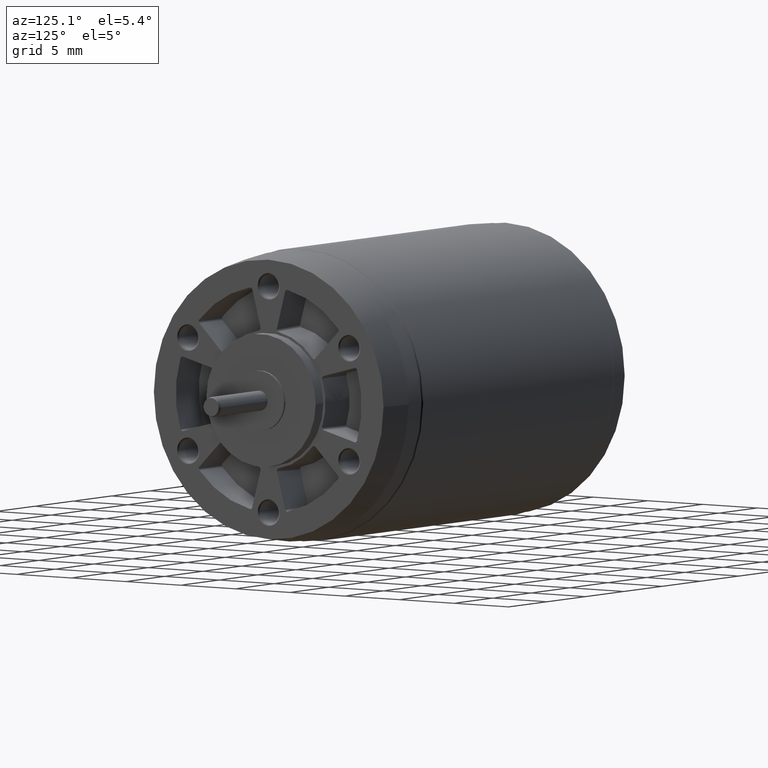
[diagram: clean part render]
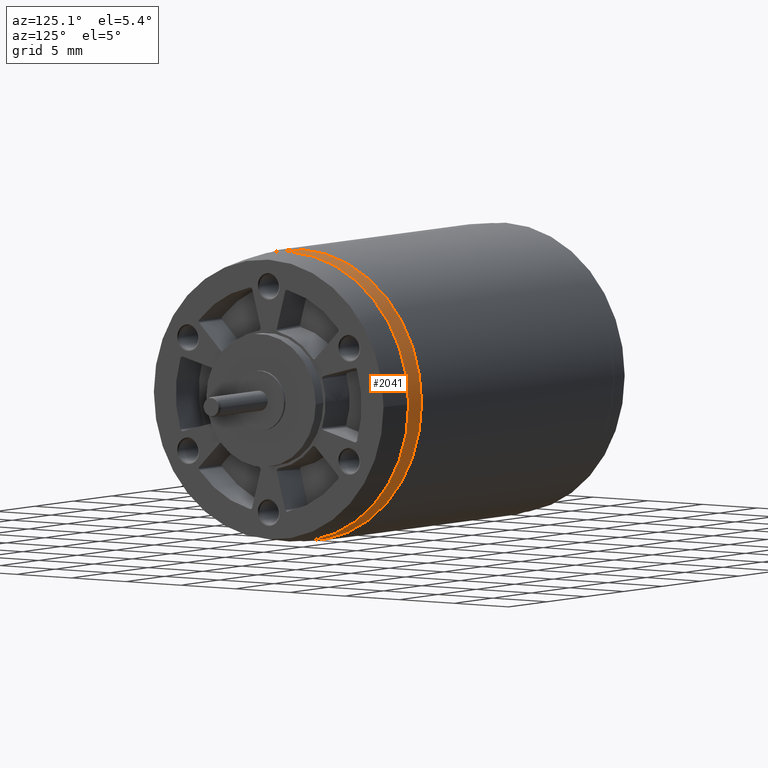
[diagram: same view with one face highlighted and labeled with its STEP entity id]
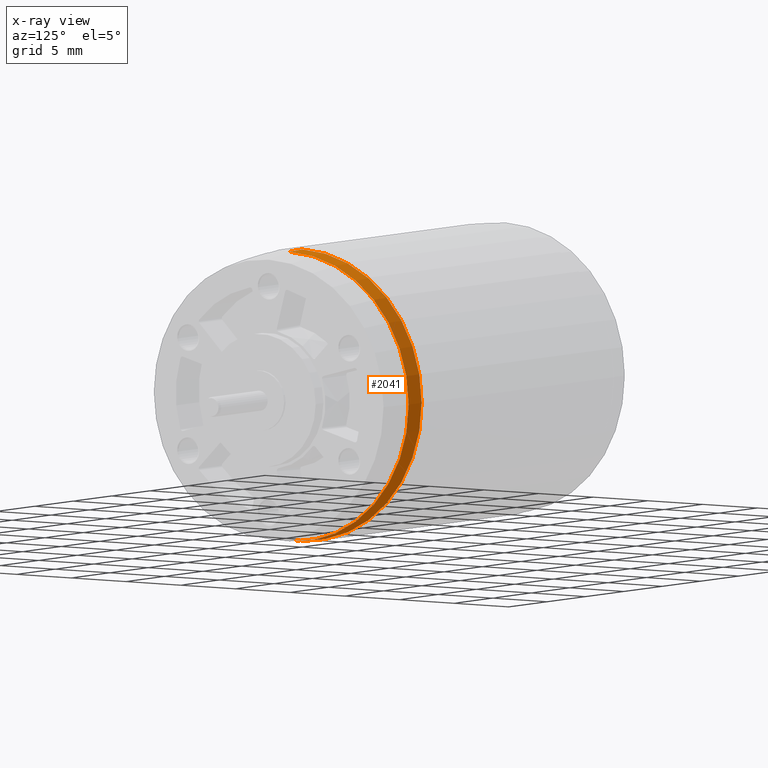
[diagram: x-ray of the same camera — body ghosted, the highlighted face saturated]
A machine part, auxiliary view. The second image highlights one B-rep face of the part: STEP entity #2041.
The next image is the same camera in x-ray: the body ghosted, the highlighted face saturated — about 0% of this face is hidden behind the body in this view.
In plain terms, the highlighted conical surface has half-angle 1.5 deg.
Its self-contained STEP definition (entity closure, byte-faithful):
#297=CARTESIAN_POINT('',(1.050438917274E2,2.428669869102E0,-3.989812658115E0));
#298=DIRECTION('',(1.E0,0.E0,0.E0));
#299=DIRECTION('',(0.E0,3.846897506675E-10,-1.E0));
#300=AXIS2_PLACEMENT_3D('',#297,#298,#299);
#302=CARTESIAN_POINT('',(1.050438917274E2,2.428669869102E0,-3.989812658115E0));
#303=DIRECTION('',(1.E0,0.E0,0.E0));
#304=DIRECTION('',(0.E0,1.E0,-4.102069115143E-10));
#305=AXIS2_PLACEMENT_3D('',#302,#303,#304);
#307=DIRECTION('',(-9.996573249738E-1,0.E0,2.617694837333E-2));
#308=VECTOR('',#307,1.617863335344E0);
#309=CARTESIAN_POINT('',(1.050438917274E2,2.428669869102E0,6.892836616880E0));
#310=LINE('',#309,#308);
#311=DIRECTION('',(9.996573249738E-1,1.726918963423E-9,2.617694837333E-2));
#312=VECTOR('',#311,1.617863335344E0);
#313=CARTESIAN_POINT('',(1.034265827934E2,2.428669868339E0,-1.491481265811E1));
#314=LINE('',#313,#312);
#315=CARTESIAN_POINT('',(1.034265827934E2,2.428669869102E0,-3.989812658115E0));
#316=DIRECTION('',(1.E0,0.E0,0.E0));
#317=DIRECTION('',(0.E0,0.E0,-1.E0));
#318=AXIS2_PLACEMENT_3D('',#315,#316,#317);
#1569=CARTESIAN_POINT('',(1.050438917274E2,1.331131914409E1,-3.989812662209E0));
#1570=VERTEX_POINT('',#1569);
#1571=CARTESIAN_POINT('',(1.050438917274E2,2.428669873288E0,-1.487246193311E1));
#1572=VERTEX_POINT('',#1571);
#1575=CARTESIAN_POINT('',(1.050438917274E2,2.428669869102E0,6.892836616883E0));
#1576=VERTEX_POINT('',#1575);
#1577=CARTESIAN_POINT('',(1.034265827934E2,2.428669868339E0,-1.491481265811E1));
#1578=VERTEX_POINT('',#1577);
#1579=CARTESIAN_POINT('',(1.034265827934E2,2.428669869102E0,6.935187341884E0));
#1580=VERTEX_POINT('',#1579);
#2028=CARTESIAN_POINT('',(1.042352372604E2,2.428669869102E0,-3.989812658115E0));
#2029=DIRECTION('',(-1.E0,0.E0,0.E0));
#2030=DIRECTION('',(0.E0,0.E0,1.E0));
#2031=AXIS2_PLACEMENT_3D('',#2028,#2029,#2030);
#2032=CONICAL_SURFACE('',#2031,1.090382463750E1,1.500000003644E0);
#2033=ORIENTED_EDGE('',*,*,#1987,.T.);
#2034=ORIENTED_EDGE('',*,*,#2006,.T.);
#2035=ORIENTED_EDGE('',*,*,#2021,.T.);
#2037=ORIENTED_EDGE('',*,*,#2036,.F.);
#2038=ORIENTED_EDGE('',*,*,#2017,.T.);
#2039=EDGE_LOOP('',(#2033,#2034,#2035,#2037,#2038));
#2040=FACE_OUTER_BOUND('',#2039,.F.);
#2041=ADVANCED_FACE('',(#2040),#2032,.T.);
#301=CIRCLE('',#300,1.088264927500E1);
#306=CIRCLE('',#305,1.088264927500E1);
#319=CIRCLE('',#318,1.0925E1);
#1987=EDGE_CURVE('',#1572,#1570,#301,.T.);
#2006=EDGE_CURVE('',#1570,#1576,#306,.T.);
#2017=EDGE_CURVE('',#1578,#1572,#314,.T.);
#2021=EDGE_CURVE('',#1576,#1580,#310,.T.);
#2036=EDGE_CURVE('',#1578,#1580,#319,.T.);